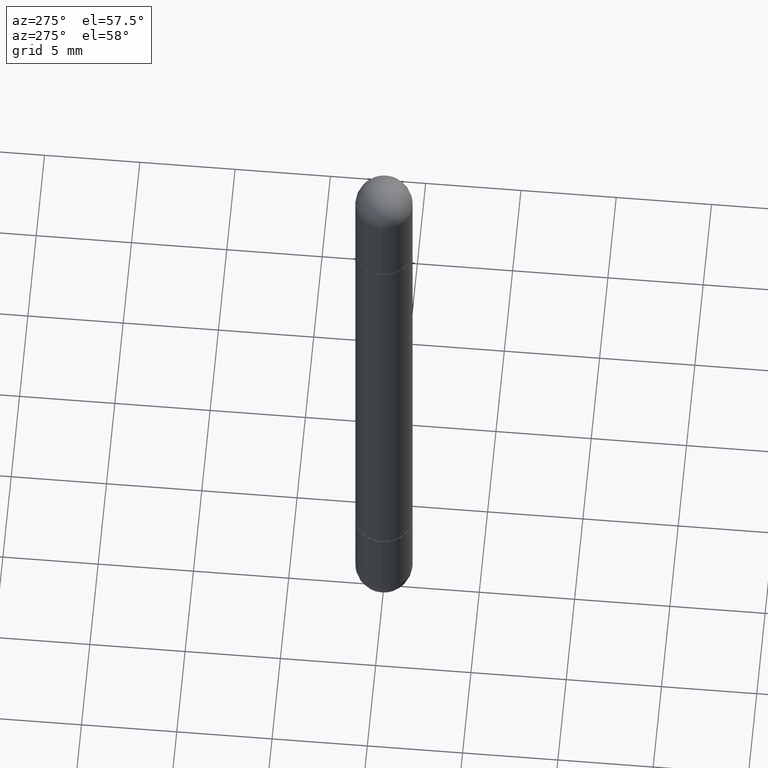
[diagram: clean part render]
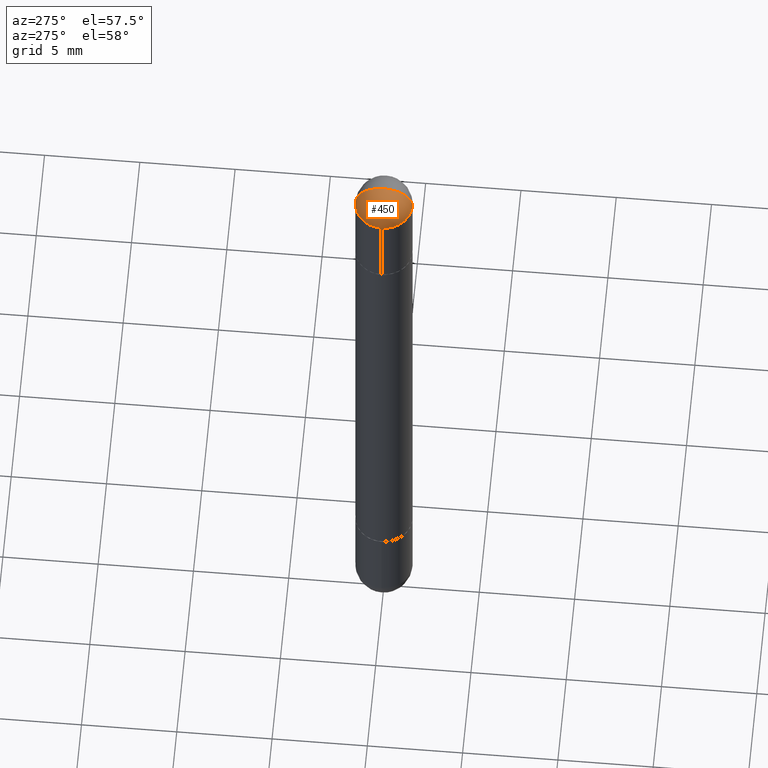
[diagram: same view with one face highlighted and labeled with its STEP entity id]
A machine part, auxiliary view. The second image highlights one B-rep face of the part: STEP entity #450.
In plain terms, the highlighted spherical surface has radius 1.4999 mm.
Its self-contained STEP definition (entity closure, byte-faithful):
#51 = SPHERICAL_SURFACE ( 'NONE', #351, 0.05905000000000025506 ) ;
#68 = EDGE_CURVE ( 'NONE', #785, #313, #157, .T. ) ;
#77 = DIRECTION ( 'NONE',  ( -1.000000000000000000, 6.982962677686265922E-15, 4.883557194083112340E-29 ) ) ;
#81 = EDGE_CURVE ( 'NONE', #427, #356, #635, .T. ) ;
#91 = DIRECTION ( 'NONE',  ( 2.445468806185136597E-29, -3.491481338843145583E-15, 1.000000000000000000 ) ) ;
#94 = EDGE_CURVE ( 'NONE', #356, #313, #329, .T. ) ;
#103 = DIRECTION ( 'NONE',  ( 1.000000000000000000, -6.982962677686270655E-15, 0.000000000000000000 ) ) ;
#157 = CIRCLE ( 'NONE', #464, 0.05905000000000025506 ) ;
#175 = DIRECTION ( 'NONE',  ( 1.000000000000000000, -6.860497997771530774E-15, -4.840798879624142912E-29 ) ) ;
#176 = CARTESIAN_POINT ( 'NONE',  ( 3.183141170014464762E-29, -5.491615626124592102E-15, -0.05905000000000028976 ) ) ;
#177 = ORIENTED_EDGE ( 'NONE', *, *, #94, .T. ) ;
#191 = DIRECTION ( 'NONE',  ( 6.982962677686265922E-15, 1.000000000000000000, 3.469747663417762014E-15 ) ) ;
#213 = AXIS2_PLACEMENT_3D ( 'NONE', #754, #254, #775 ) ;
#239 = CARTESIAN_POINT ( 'NONE',  ( 4.123439461174084467E-16, 0.05904999999999487742, -0.05905000000000008159 ) ) ;
#254 = DIRECTION ( 'NONE',  ( 2.445468806185136597E-29, -3.491481338843145583E-15, 1.000000000000000000 ) ) ;
#272 = CIRCLE ( 'NONE', #292, 0.05905000000000025506 ) ;
#292 = AXIS2_PLACEMENT_3D ( 'NONE', #636, #77, #324 ) ;
#313 = VERTEX_POINT ( 'NONE', #387 ) ;
#323 = EDGE_CURVE ( 'NONE', #785, #427, #272, .T. ) ;
#324 = DIRECTION ( 'NONE',  ( -6.982962677686266711E-15, -1.000000000000000000, 0.000000000000000000 ) ) ;
#329 = CIRCLE ( 'NONE', #213, 0.05905000000000001914 ) ;
#339 = AXIS2_PLACEMENT_3D ( 'NONE', #667, #91, #103 ) ;
#351 = AXIS2_PLACEMENT_3D ( 'NONE', #176, #814, #191 ) ;
#356 = VERTEX_POINT ( 'NONE', #664 ) ;
#365 = FACE_OUTER_BOUND ( 'NONE', #624, .T. ) ;
#387 = CARTESIAN_POINT ( 'NONE',  ( -4.051124067683763770E-16, -0.05905000000000539678, -0.05905000000000049099 ) ) ;
#413 = DIRECTION ( 'NONE',  ( 6.860497997771530774E-15, 1.000000000000000000, 0.000000000000000000 ) ) ;
#427 = VERTEX_POINT ( 'NONE', #239 ) ;
#450 = ADVANCED_FACE ( 'NONE', ( #365 ), #51, .T. ) ;
#464 = AXIS2_PLACEMENT_3D ( 'NONE', #744, #175, #413 ) ;
#474 = CARTESIAN_POINT ( 'NONE',  ( 3.330070981488499955E-29, -5.694171829508798064E-15, -3.414809992080329023E-17 ) ) ;
#483 = ORIENTED_EDGE ( 'NONE', *, *, #81, .T. ) ;
#539 = ORIENTED_EDGE ( 'NONE', *, *, #323, .T. ) ;
#624 = EDGE_LOOP ( 'NONE', ( #797, #539, #483, #177 ) ) ;
#635 = CIRCLE ( 'NONE', #339, 0.05905000000000001914 ) ;
#636 = CARTESIAN_POINT ( 'NONE',  ( 3.183141170014464762E-29, -5.491615626124592102E-15, -0.05905000000000028976 ) ) ;
#664 = CARTESIAN_POINT ( 'NONE',  ( -0.05905000000000001914, -4.303062891628101254E-15, -0.05905000000000028976 ) ) ;
#667 = CARTESIAN_POINT ( 'NONE',  ( 3.514260947928350449E-29, -5.017433257984542594E-15, -0.05905000000000028976 ) ) ;
#744 = CARTESIAN_POINT ( 'NONE',  ( 3.183141170014464762E-29, -5.491615626124592102E-15, -0.05905000000000028976 ) ) ;
#754 = CARTESIAN_POINT ( 'NONE',  ( 3.514260947928350449E-29, -5.017433257984542594E-15, -0.05905000000000028976 ) ) ;
#775 = DIRECTION ( 'NONE',  ( 1.000000000000000000, -6.982962677686270655E-15, 0.000000000000000000 ) ) ;
#785 = VERTEX_POINT ( 'NONE', #474 ) ;
#797 = ORIENTED_EDGE ( 'NONE', *, *, #68, .F. ) ;
#814 = DIRECTION ( 'NONE',  ( 1.000000000000000000, -6.982962677686265922E-15, -4.883557194083112340E-29 ) ) ;